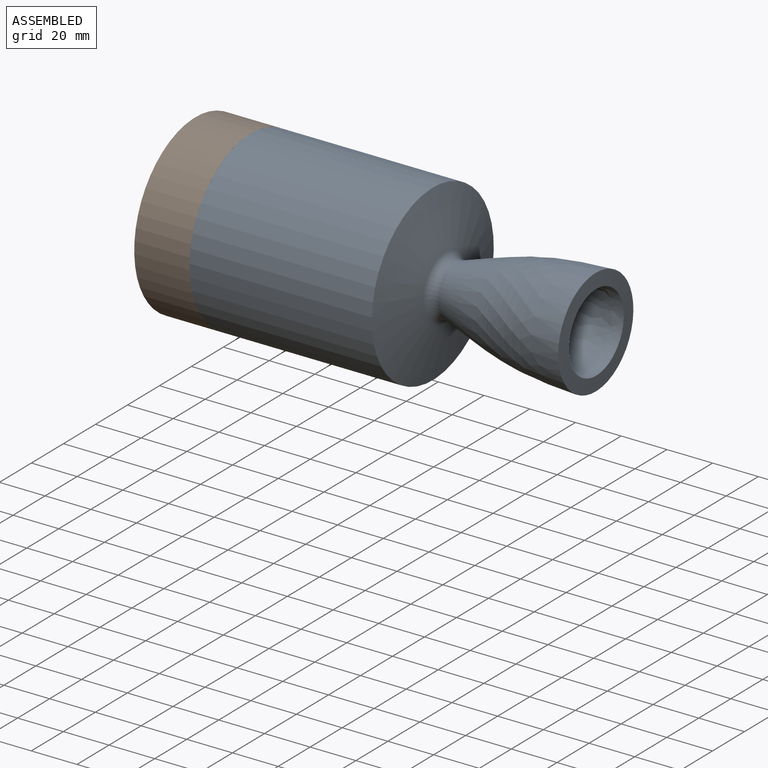
[diagram: assembled view]
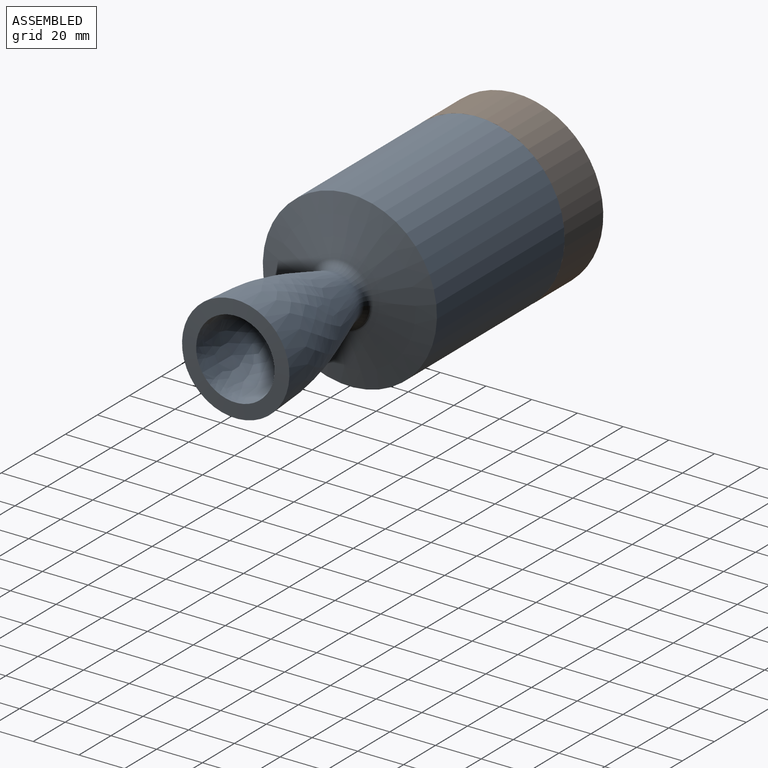
[diagram: assembled view, second angle]
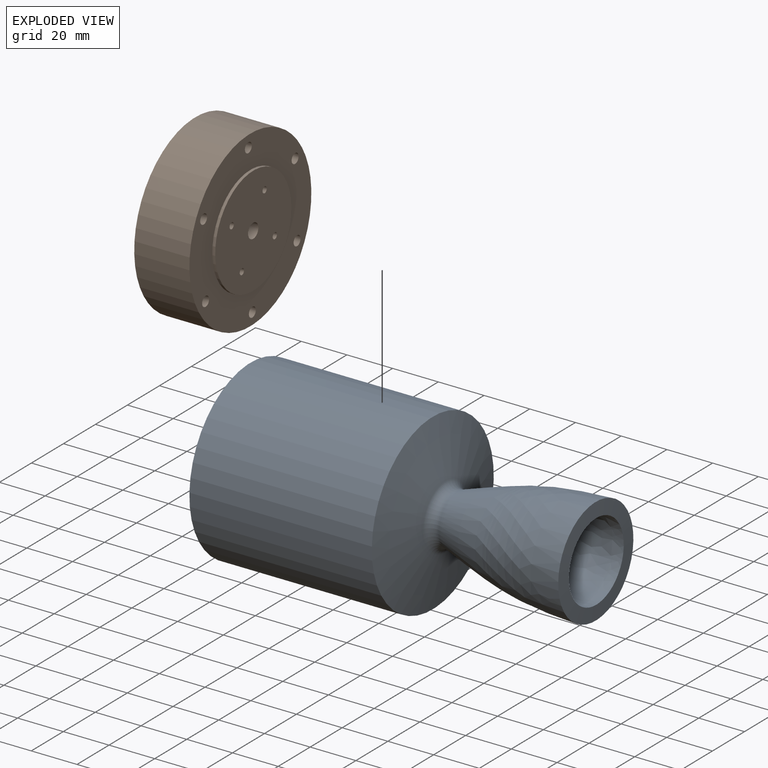
[diagram: exploded view]
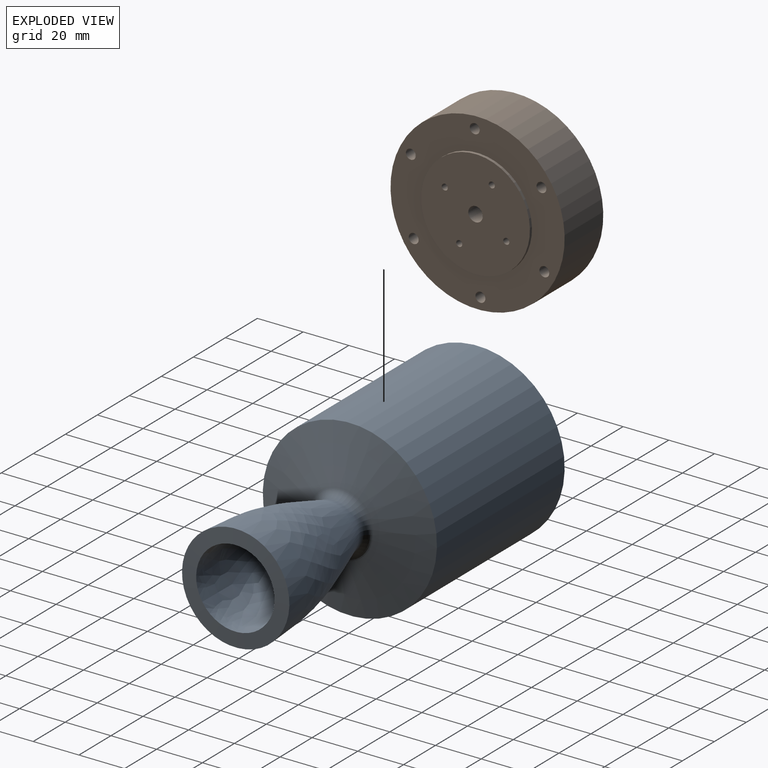
[diagram: exploded view, second angle]
ASSEMBLY  parts=2 mates=2
PART A: 24 faces, bbox 151.4x76.2x76.2 mm
  f0: cone r=0mm half-angle=59deg, axis (-1,0,0), area 15.9mm2, adj f1
  f1: cylinder r=2.08mm len=19.05mm, axis (-1,0,0), area 249.3mm2, adj f0,f17
  f2: cone r=0mm half-angle=59deg, axis (-1,0,0), area 15.9mm2, adj f3
  f3: cylinder r=2.08mm len=19.05mm, axis (-1,0,0), area 249.3mm2, adj f2,f17
  f4: cone r=0mm half-angle=59deg, axis (-1,0,0), area 15.9mm2, adj f5
  f5: cylinder r=2.08mm len=19.05mm, axis (-1,0,0), area 249.3mm2, adj f4,f17
  f6: cone r=0mm half-angle=59deg, axis (-1,0,0), area 15.9mm2, adj f7
  f7: cylinder r=2.08mm len=19.05mm, axis (-1,0,0), area 249.3mm2, adj f6,f17
  f8: cone r=0mm half-angle=59deg, axis (-1,0,0), area 15.9mm2, adj f9
  f9: cylinder r=2.08mm len=19.05mm, axis (-1,0,0), area 249.3mm2, adj f8,f17
  f10: torus R=14.92mm, axis (-1,0,0), area 718.7mm2, adj f11,f21
  f11: revolved ~59.13x34.29mm, area 4904.7mm2, adj f10,f12
  f12: cone r=23.49mm half-angle=87.9deg, axis (-1,0,0), area 810.6mm2, adj f11,f13
  f13: revolved ~60.85x46.98mm, area 7490mm2, adj f12,f14
  f14: torus R=14.92mm, axis (-1,0,0), area 474.2mm2, adj f13,f15
  f15: cone r=14.06mm half-angle=76.9deg, axis (-1,0,0), area 4044.6mm2, adj f14,f16
  f16: cylinder r=38.1mm len=79.8mm, axis (-1,0,0), area 19104mm2, adj f15,f17
  f17: plane 76.2x76.2mm, normal (-1,0,0), area 1867.6mm2, adj f1,f3,f5,f7,f9,f16,f18,f23
  f18: revolved ~57.66x57.66mm, area 681.3mm2, adj f17,f19
  f19: plane 53.09x53.09mm, normal (-1,0,0), area 428.2mm2, adj f18,f20
  f20: cylinder r=23.84mm len=76.2mm, axis (-1,0,0), area 11413.1mm2, adj f19,f21
  f21: cone r=23.84mm half-angle=75deg, axis (-1,0,0), area 1356.7mm2, adj f10,f20
  f22: cone r=0mm half-angle=59deg, axis (-1,0,0), area 15.9mm2, adj f23
  f23: cylinder r=2.08mm len=19.05mm, axis (-1,0,0), area 249.3mm2, adj f17,f22
PART B: 36 faces, bbox 76.2x76.2x25.4 mm
  f0: cylinder r=1.33mm len=11.43mm, axis (0,0,1), area 95.8mm2, adj f1,f24
  f1: plane 6.35x6.35mm, normal (0,0,1), area 26.1mm2, adj f0,f2
  f2: cylinder r=3.17mm len=13.97mm, axis (0,0,1), area 278.7mm2, adj f1,f28
  f3: cylinder r=1.33mm len=11.43mm, axis (0,0,1), area 95.8mm2, adj f4,f24
  f4: plane 6.35x6.35mm, normal (0,0,1), area 26.1mm2, adj f3,f5
  f5: cylinder r=3.17mm len=13.97mm, axis (0,0,1), area 278.7mm2, adj f4,f28
  f6: cylinder r=1.33mm len=11.43mm, axis (0,0,1), area 95.8mm2, adj f7,f24
  f7: plane 6.35x6.35mm, normal (0,0,1), area 26.1mm2, adj f6,f8
  f8: cylinder r=3.17mm len=13.97mm, axis (0,0,1), area 278.7mm2, adj f7,f28
  f9: cylinder r=2.16mm len=19.94mm, axis (0,0,1), area 270.5mm2, adj f10,f26
  f10: plane 6.86x6.86mm, normal (0,0,1), area 22.3mm2, adj f9,f11
  f11: cylinder r=3.43mm len=6.86mm, axis (0,0,1), area 90.3mm2, adj f10,f28
  f12: cylinder r=2.16mm len=19.94mm, axis (0,0,1), area 270.5mm2, adj f13,f26
  f13: plane 6.86x6.86mm, normal (0,0,1), area 22.3mm2, adj f12,f14
  f14: cylinder r=3.43mm len=6.86mm, axis (0,0,1), area 90.3mm2, adj f13,f28
  f15: cylinder r=2.16mm len=19.94mm, axis (0,0,1), area 270.5mm2, adj f16,f26
  f16: plane 6.86x6.86mm, normal (0,0,1), area 22.3mm2, adj f15,f17
  f17: cylinder r=3.43mm len=6.86mm, axis (0,0,1), area 90.3mm2, adj f16,f28
  f18: cylinder r=2.16mm len=19.94mm, axis (0,0,1), area 270.5mm2, adj f19,f26
  f19: plane 6.86x6.86mm, normal (0,0,1), area 22.3mm2, adj f18,f20
  f20: cylinder r=3.43mm len=6.86mm, axis (0,0,1), area 90.3mm2, adj f19,f28
  f21: cylinder r=2.16mm len=19.94mm, axis (0,0,1), area 270.5mm2, adj f22,f26
  f22: plane 6.86x6.86mm, normal (0,0,1), area 22.3mm2, adj f21,f23
  f23: cylinder r=3.43mm len=6.86mm, axis (0,0,1), area 90.3mm2, adj f22,f28
  f24: plane 47.57x47.57mm, normal (0,0,-1), area 1723.6mm2, adj f0,f3,f6,f25,f29,f33
  f25: cylinder r=23.79mm len=47.57mm, axis (0,0,1), area 189.8mm2, adj f24,f26
  f26: plane 76.2x76.2mm, normal (0,0,-1), area 2694.9mm2, adj f9,f12,f15,f18,f21,f25,f27,f30
  f27: cylinder r=38.1mm len=76.2mm, axis (0,0,1), area 5776.5mm2, adj f26,f28
  f28: plane 76.2x76.2mm, normal (0,0,1), area 4180.4mm2, adj f2,f5,f8,f11,f14,f17,f20,f23
  f29: cylinder r=3.17mm len=25.4mm, axis (0,0,1), area 506.7mm2, adj f24,f28
  f30: cylinder r=2.16mm len=19.94mm, axis (0,0,1), area 270.5mm2, adj f26,f31
  f31: plane 6.86x6.86mm, normal (0,0,1), area 22.3mm2, adj f30,f32
  f32: cylinder r=3.43mm len=6.86mm, axis (0,0,1), area 90.3mm2, adj f28,f31
  f33: cylinder r=1.33mm len=11.43mm, axis (0,0,1), area 95.8mm2, adj f24,f34
  f34: plane 6.35x6.35mm, normal (0,0,1), area 26.1mm2, adj f33,f35
  f35: cylinder r=3.17mm len=13.97mm, axis (0,0,1), area 278.7mm2, adj f28,f34
PLACE A rot(axis=(1,0,0),122.4deg) t=(-127.01,-184.52,40.71)mm fixed
PLACE B rot(axis=(-0.23,-0.94,0.23),93.3deg) t=(-125.74,-184.52,40.71)mm
MATE cylindrical A.f10 <-> B.f25  axis (-1,0,0) through (-88.91,-184.52,40.71)mm
MATE planar B.f25 <-> A.f10  axis (1,0,0) through (-127.01,-184.52,40.71)mm
